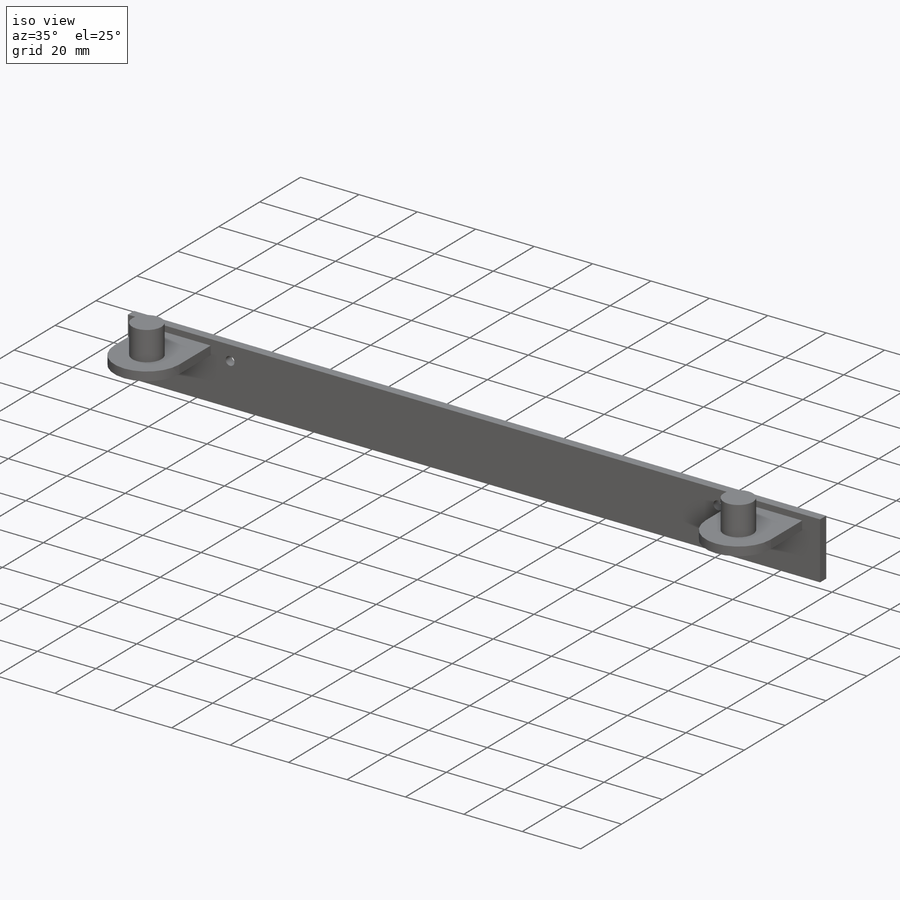
[diagram: iso view]
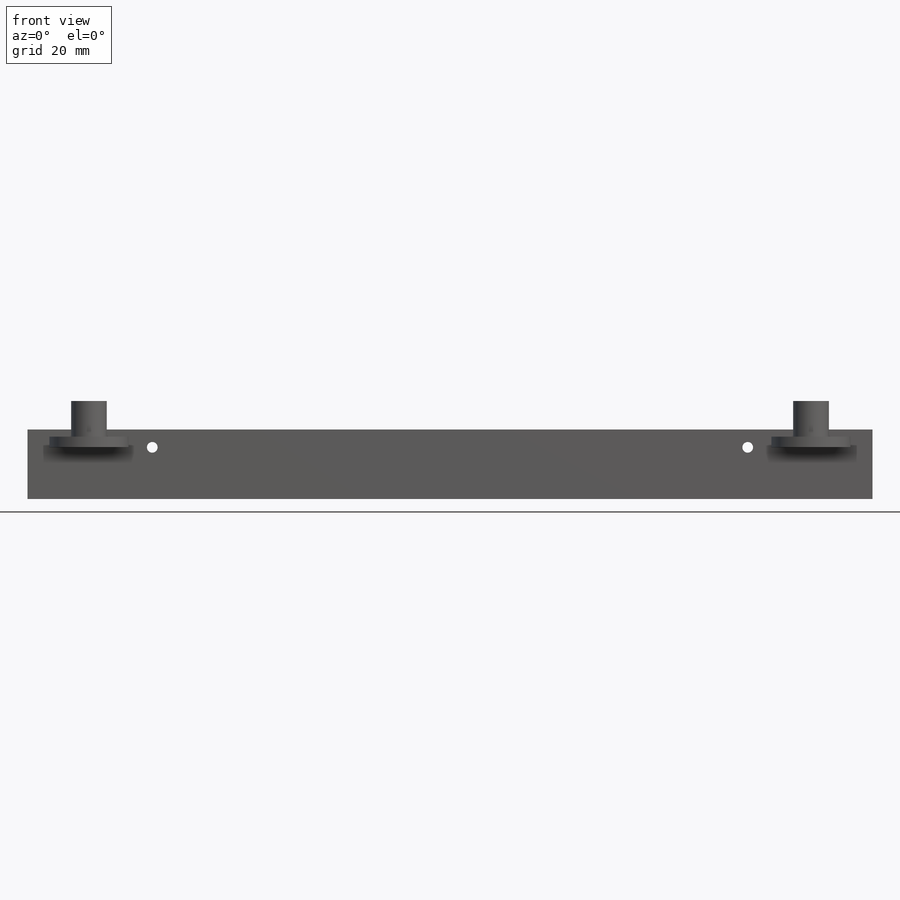
[diagram: front view]
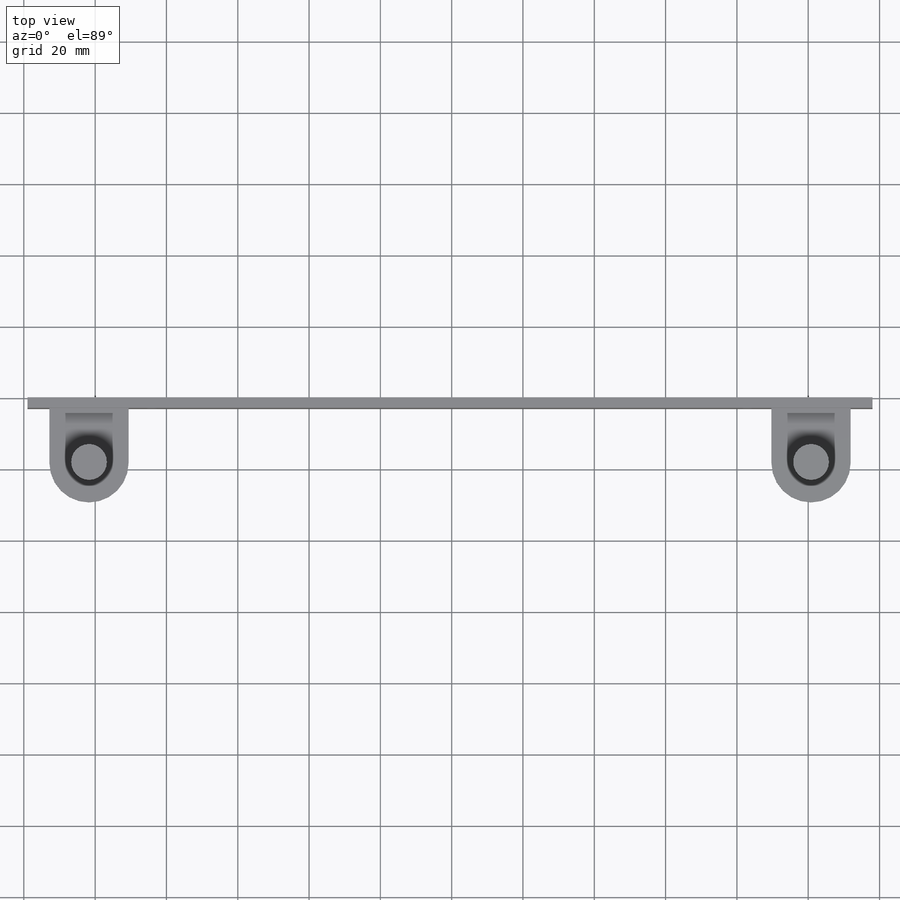
[diagram: top view]
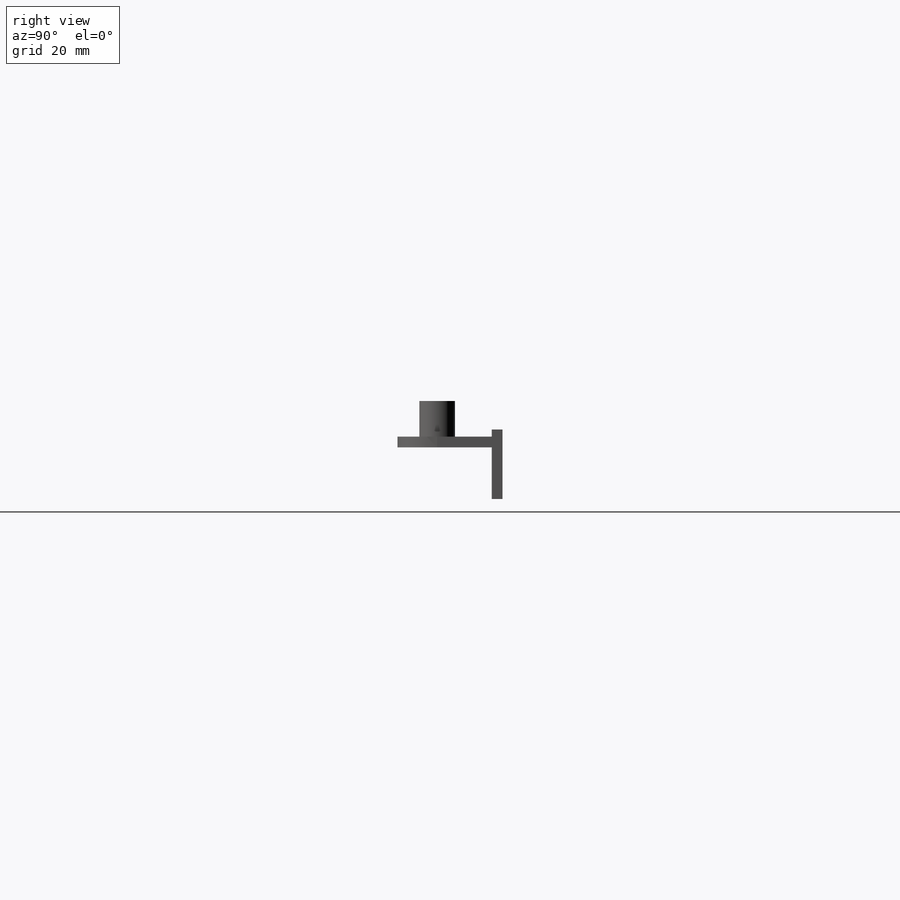
[diagram: right view]
SOLIDWORKS PART (.sldprt)
format: sldprt  version: not decoded by parser v0  size: 212,992 bytes
history: native  units: mm
features: sketch x5, plane x4, extrude x4, material x1, cut_extrude x1 (+13 scaffold rows collapsed)
feature tree (28):
  scaffold x13  (default folders/planes/origin — collapsed)
  material  "Matériau <non spécifié>"
  plane  "Plan de face"
  plane  "Plan de dessus"
  plane  "Plan de droite"
  sketch  "Esquisse1"  dims[D1=237.01mm D2=19.49mm]
  extrude  "Boss.-Extru.1"  Depth=3mm
  plane  "Plan1"  Offset=2mm
  sketch  "Esquisse2"  dims[D1=22.23mm D2=6.135mm D3=15.31mm D4=15.31mm D5=0.0mm D6=118.505mm]
  extrude  "Boss.-Extru.2"  Depth=3mm
  sketch  "Esquisse3"  dims[D1=~3.834398mm]
  extrude  "Boss.-Extru.3"  Depth=10mm
  sketch  "Esquisse4"  dims[D1=~3.475032mm]
  extrude  "Boss.-Extru.4"  Depth=10mm
  sketch  "Esquisse5"  dims[c1.D1=~4.734575mm c1.D2=~4.734575mm c1.D3=~3.801991mm c1.D4=~3.801991mm c1.D5=3.0mm c1.D6=3.0mm c2.D1=5.0mm c2.D2=35.0mm c2.D3=5.0mm c2.D4=35.0mm]
  cut_extrude  "Enlèv. mat.-Extru.1"  Depth=10mm
decode coverage: 10 of 10 modeling features carry decoded parameters
note: ~ marks probable driven/reference dimensions
note: suppression state not decoded; provenance and decode notes live in map.json
